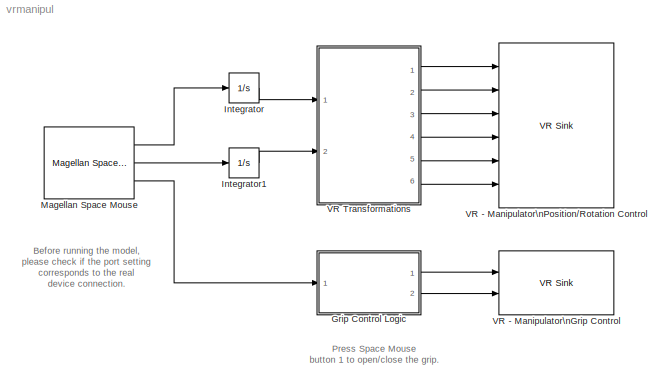
MODEL vrmanipul
KIND model
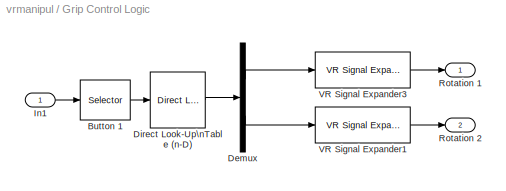
BLOCK [SubSystem] Grip Control Logic
  EnableExecutionContextPropagation = on
  MinAlgLoopOccurrences = off
  Ports = [1, 2]
  TreatAsAtomicUnit = off
BLOCK [Selector] Grip Control Logic/Button 1
  Ports = [1, 1]
BLOCK [Demux] Grip Control Logic/Demux
  Outputs = 2
  Ports = [1, 2]
BLOCK [Reference] Grip Control Logic/Direct Look-Up\nTable (n-D)  REF=simulink/Look-Up\nTables/Direct Look-Up\nTable (n-D)
  Ports = [1, 1]
  SourceBlock = simulink/Look-Up\nTables/Direct Look-Up\nTable (n-D)
  SourceType = LookupNDDirect
  clipFlag = Warning
  explicitNumDims = 1
  maskTabDims = 2
  mxTable = [0.3 0.02;-0.3 -0.02]
  outDims = Column
  tabIsInput = off
BLOCK [Inport] Grip Control Logic/In1
  IconDisplay = Port number
  LatchInput = off
BLOCK [Outport] Grip Control Logic/Rotation 1
  BusOutputAsStruct = off
  IconDisplay = Port number
BLOCK [Outport] Grip Control Logic/Rotation 2
  BusOutputAsStruct = off
  IconDisplay = Port number
  Port = 2
BLOCK [Reference] Grip Control Logic/VR Signal Expander1  REF=vrlib/VR Signal Expander
  Ports = [1, 1]
  SourceBlock = vrlib/VR Signal Expander
  SourceType = VR Signal Expander
  outidx = 4
  outwidth = 4
BLOCK [Reference] Grip Control Logic/VR Signal Expander3  REF=vrlib/VR Signal Expander
  Ports = [1, 1]
  SourceBlock = vrlib/VR Signal Expander
  SourceType = VR Signal Expander
  outidx = 4
  outwidth = 4
BLOCK [Integrator] Integrator
  InitialCondition = [0 -3 0]
  LimitOutput = on
  LowerSaturationLimit = [-4 -4 -4]
  Ports = [1, 1]
  UpperSaturationLimit = [4 1 4]
  ZeroCross = off
BLOCK [Integrator] Integrator1
  InitialCondition = [0 2 0]
  LowerSaturationLimit = -Inf
  Ports = [1, 1]
  UpperSaturationLimit = Inf
  ZeroCross = off
BLOCK [Reference] Magellan Space Mouse  REF=vrlib/Magellan Space Mouse
  DisableRotation = off
  DisableTranslation = off
  Dominant = on
  InitialPosition = [0 0 0]
  InitialRotation = [0 0 0]
  NormalizeAngle = off
  OutputType = Speed
  Port = COM1
  Ports = [0, 3]
  PositionSensitivity = 0.001
  RotationSensitivity = 0.001
  SourceBlock = vrlib/Magellan Space Mouse
  SourceType = Magellan Space Mouse
BLOCK [Reference] VR - Manipulator\nGrip Control  REF=vrlib/VR Sink
  AutoView = off
  FieldsWritten = Finger1.rotation.4#Finger2.rotation.4
  FigureProperties = {}
  Ports = [2]
  RemoteChange = off
  RemoteView = off
  SampleTime = 0
  SourceBlock = vrlib/VR Sink
  SourceType = Virtual Reality Sink
  ViewEnable = on
  WorldDescription = VR Manipulator
  WorldFileName = vrmanipul.wrl
BLOCK [Reference] VR - Manipulator\nPosition//Rotation Control  REF=vrlib/VR Sink
  AutoView = on
  FieldsWritten = Portal.translation.3.1.double#Base.translation.3.1.double#Telescope.rotation.4.1.double#Telescope.translation.3.1.double#Arm.rotation.4.1.double#Wrist.rotation.4.1.double
  Ports = [6]
  RemoteChange = off
  RemoteView = off
  SampleTime = 0
  SourceBlock = vrlib/VR Sink
  SourceType = Virtual Reality Sink
  ViewEnable = on
  WorldFileName = vrmanipul.wrl
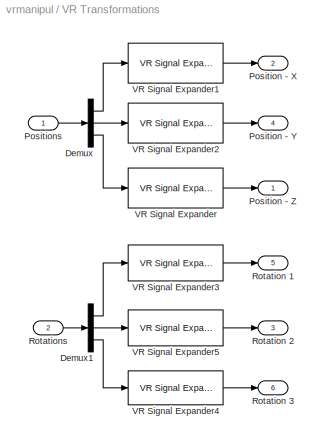
BLOCK [SubSystem] VR Transformations
  EnableExecutionContextPropagation = on
  MinAlgLoopOccurrences = off
  Ports = [2, 6]
  TreatAsAtomicUnit = off
BLOCK [Demux] VR Transformations/Demux
  Outputs = 3
  Ports = [1, 3]
BLOCK [Demux] VR Transformations/Demux1
  Outputs = 3
  Ports = [1, 3]
BLOCK [Outport] VR Transformations/Position - X
  BusOutputAsStruct = off
  IconDisplay = Port number
  Port = 2
BLOCK [Outport] VR Transformations/Position - Y
  BusOutputAsStruct = off
  IconDisplay = Port number
  Port = 4
BLOCK [Outport] VR Transformations/Position - Z
  BusOutputAsStruct = off
  IconDisplay = Port number
BLOCK [Inport] VR Transformations/Positions
  IconDisplay = Port number
  LatchInput = off
BLOCK [Outport] VR Transformations/Rotation 1
  BusOutputAsStruct = off
  IconDisplay = Port number
  Port = 5
BLOCK [Outport] VR Transformations/Rotation 2
  BusOutputAsStruct = off
  IconDisplay = Port number
  Port = 3
BLOCK [Outport] VR Transformations/Rotation 3
  BusOutputAsStruct = off
  IconDisplay = Port number
  Port = 6
BLOCK [Inport] VR Transformations/Rotations
  IconDisplay = Port number
  LatchInput = off
  Port = 2
BLOCK [Reference] VR Transformations/VR Signal Expander  REF=vrlib/VR Signal Expander
  Ports = [1, 1]
  SourceBlock = vrlib/VR Signal Expander
  SourceType = VR Signal Expander
  outidx = 3
  outwidth = 3
BLOCK [Reference] VR Transformations/VR Signal Expander1  REF=vrlib/VR Signal Expander
  Ports = [1, 1]
  SourceBlock = vrlib/VR Signal Expander
  SourceType = VR Signal Expander
  outidx = 1
  outwidth = 3
BLOCK [Reference] VR Transformations/VR Signal Expander2  REF=vrlib/VR Signal Expander
  Ports = [1, 1]
  SourceBlock = vrlib/VR Signal Expander
  SourceType = VR Signal Expander
  outidx = 2
  outwidth = 3
BLOCK [Reference] VR Transformations/VR Signal Expander3  REF=vrlib/VR Signal Expander
  Ports = [1, 1]
  SourceBlock = vrlib/VR Signal Expander
  SourceType = VR Signal Expander
  outidx = 4
  outwidth = 4
BLOCK [Reference] VR Transformations/VR Signal Expander4  REF=vrlib/VR Signal Expander
  Ports = [1, 1]
  SourceBlock = vrlib/VR Signal Expander
  SourceType = VR Signal Expander
  outidx = 4
  outwidth = 4
BLOCK [Reference] VR Transformations/VR Signal Expander5  REF=vrlib/VR Signal Expander
  Ports = [1, 1]
  SourceBlock = vrlib/VR Signal Expander
  SourceType = VR Signal Expander
  outidx = 4
  outwidth = 4
ANNOTATION (root): Before running the model,\nplease check if the port setting\ncorresponds to the real\ndevice connection.\n
ANNOTATION (root): Press Space Mouse \nbutton 1 to open/close the grip.
LINE Grip Control Logic/Button 1:1 -> Grip Control Logic/Direct Look-Up\nTable (n-D):1
LINE Grip Control Logic/Demux:1 -> Grip Control Logic/VR Signal Expander3:1
LINE Grip Control Logic/Demux:2 -> Grip Control Logic/VR Signal Expander1:1
LINE Grip Control Logic/Direct Look-Up\nTable (n-D):1 -> Grip Control Logic/Demux:1
LINE Grip Control Logic/In1:1 -> Grip Control Logic/Button 1:1
LINE Grip Control Logic/VR Signal Expander1:1 -> Grip Control Logic/Rotation 2:1
LINE Grip Control Logic/VR Signal Expander3:1 -> Grip Control Logic/Rotation 1:1
LINE Grip Control Logic:1 -> VR - Manipulator\nGrip Control:1
LINE Grip Control Logic:2 -> VR - Manipulator\nGrip Control:2
LINE Integrator1:1 -> VR Transformations:2
LINE Integrator:1 -> VR Transformations:1
LINE Magellan Space Mouse:1 -> Integrator:1
LINE Magellan Space Mouse:2 -> Integrator1:1
LINE Magellan Space Mouse:3 -> Grip Control Logic:1
LINE VR Transformations/Demux1:1 -> VR Transformations/VR Signal Expander3:1
LINE VR Transformations/Demux1:2 -> VR Transformations/VR Signal Expander5:1
LINE VR Transformations/Demux1:3 -> VR Transformations/VR Signal Expander4:1
LINE VR Transformations/Demux:1 -> VR Transformations/VR Signal Expander1:1
LINE VR Transformations/Demux:2 -> VR Transformations/VR Signal Expander2:1
LINE VR Transformations/Demux:3 -> VR Transformations/VR Signal Expander:1
LINE VR Transformations/Positions:1 -> VR Transformations/Demux:1
LINE VR Transformations/Rotations:1 -> VR Transformations/Demux1:1
LINE VR Transformations/VR Signal Expander1:1 -> VR Transformations/Position - X:1
LINE VR Transformations/VR Signal Expander2:1 -> VR Transformations/Position - Y:1
LINE VR Transformations/VR Signal Expander3:1 -> VR Transformations/Rotation 1:1
LINE VR Transformations/VR Signal Expander4:1 -> VR Transformations/Rotation 3:1
LINE VR Transformations/VR Signal Expander5:1 -> VR Transformations/Rotation 2:1
LINE VR Transformations/VR Signal Expander:1 -> VR Transformations/Position - Z:1
LINE VR Transformations:1 -> VR - Manipulator\nPosition//Rotation Control:1
LINE VR Transformations:2 -> VR - Manipulator\nPosition//Rotation Control:2
LINE VR Transformations:3 -> VR - Manipulator\nPosition//Rotation Control:3
LINE VR Transformations:4 -> VR - Manipulator\nPosition//Rotation Control:4
LINE VR Transformations:5 -> VR - Manipulator\nPosition//Rotation Control:5
LINE VR Transformations:6 -> VR - Manipulator\nPosition//Rotation Control:6
